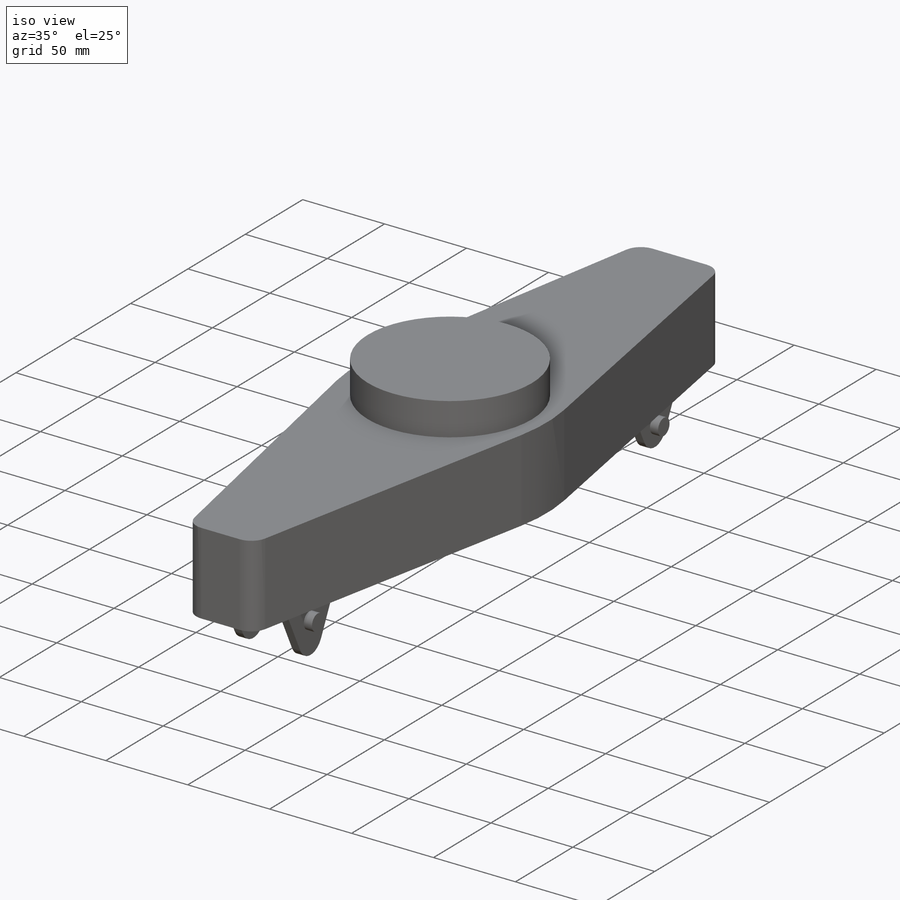
[diagram: iso view]
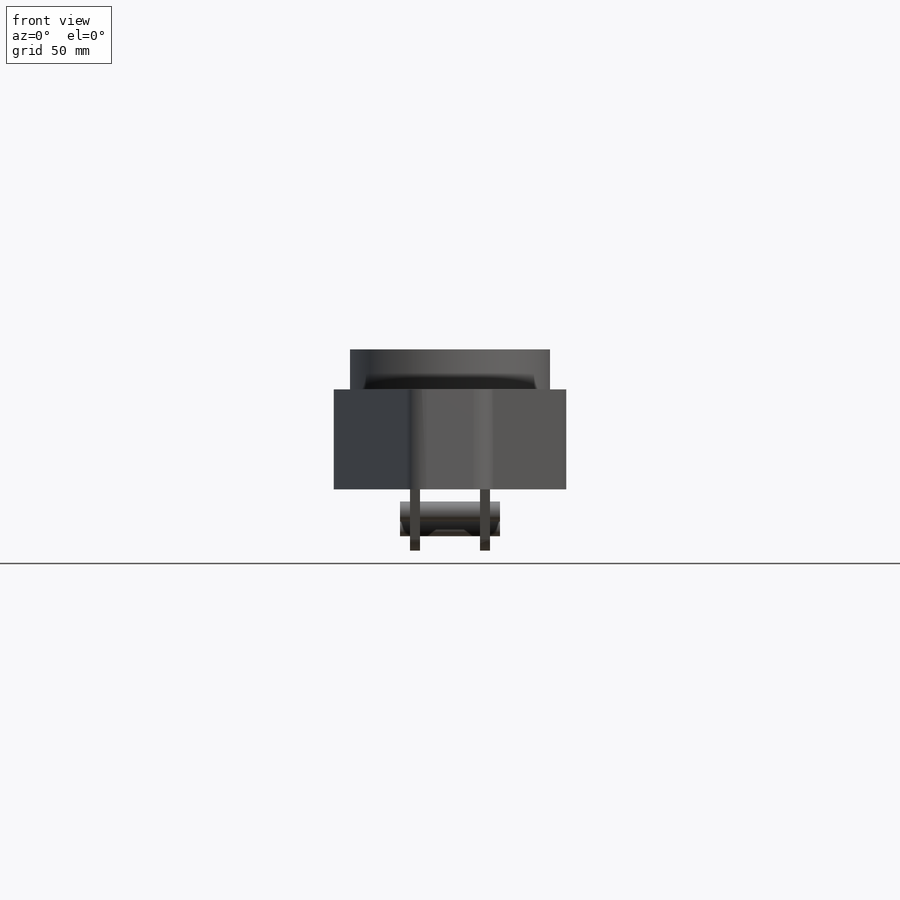
[diagram: front view]
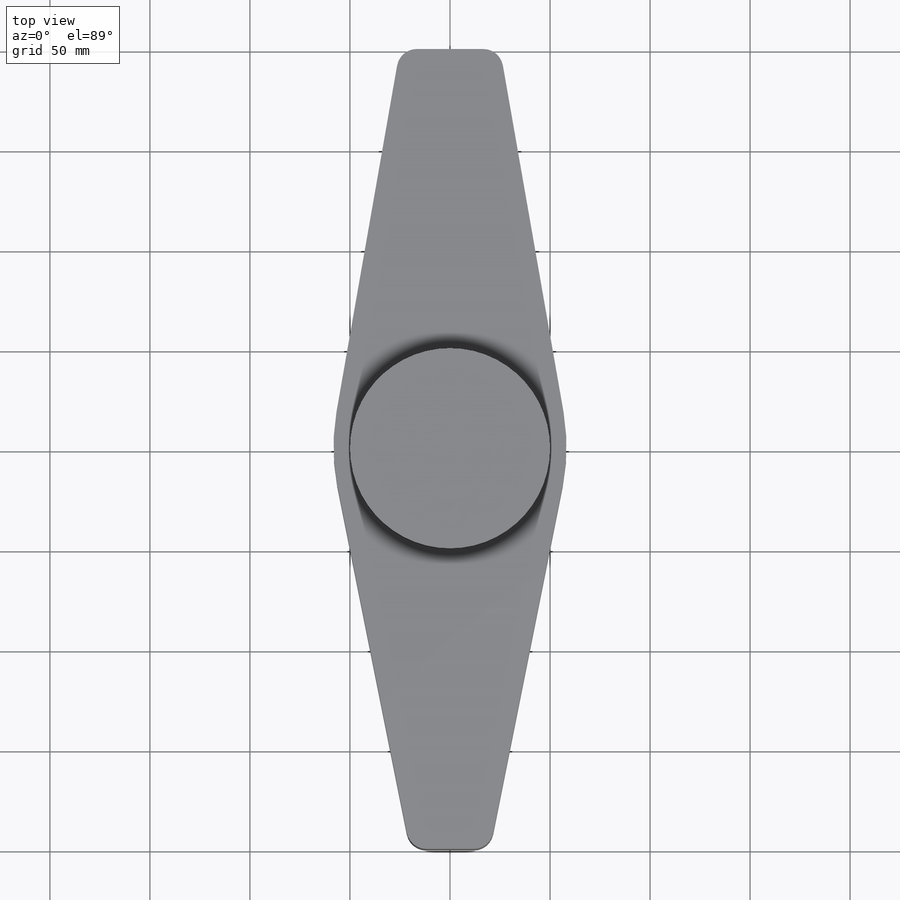
[diagram: top view]
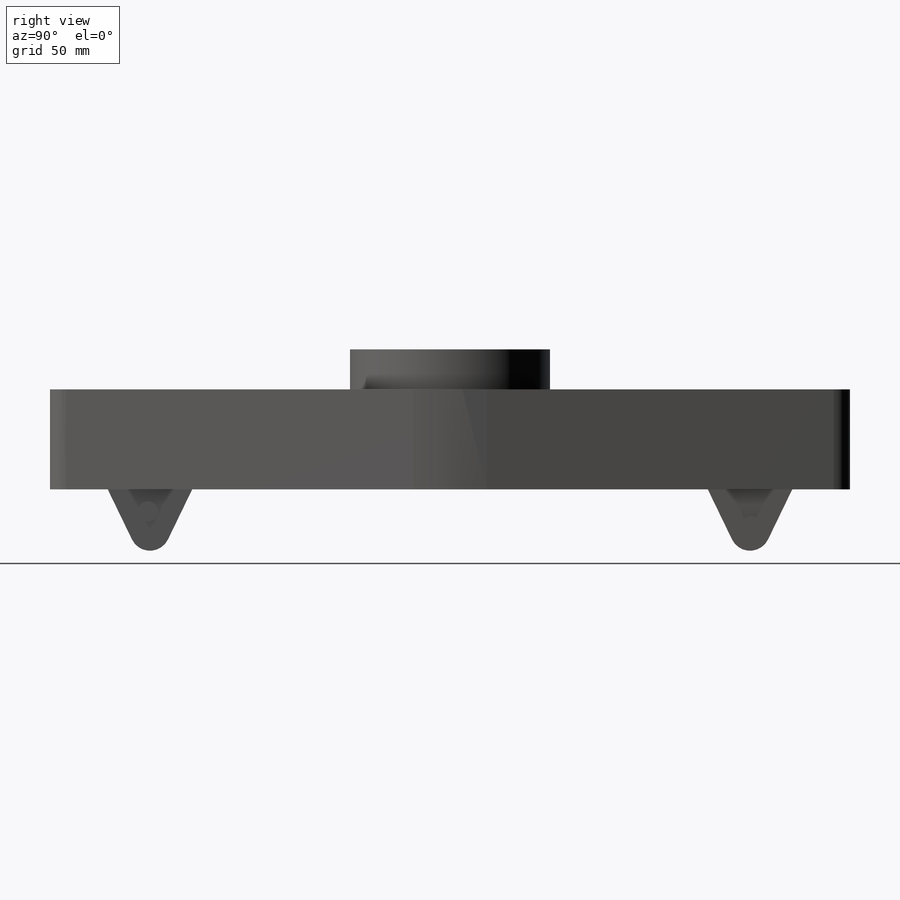
[diagram: right view]
SOLIDWORKS PART (.sldprt)
format: sldprt  version: not decoded by parser v0  size: 240,128 bytes
history: native  units: mm
features: sketch x5, extrude x5, fillet x2, material x1, plane x1, mirror x1 (+13 scaffold rows collapsed)
feature tree (28):
  scaffold x13  (default folders/planes/origin — collapsed)
  material  "Material <not specified>"
  sketch  "Sketch2"  dims[D1=400.0mm D1/2=~164.226804mm D2=200.0mm D3=60.0mm D4=25.0mm D5=20.0mm]
  extrude  "Boss-Extrude1"  Depth=25mm
  sketch  "Sketch3"  dims[D2=100.0mm D1=0.0mm]
  extrude  "Boss-Extrude2"  Depth=45mm
  plane  "Plane1"  Offset=15mm
  sketch  "Sketch6"  dims[c1.D1=10.0mm c1.D2=10.0mm c1.D4=10.0mm c2.D1=0.0mm c2.D2=10.0mm c2.D3=0.0mm c2.D4=0.0mm c3.D1=~18.185841mm c4.D1=75.0deg c4.D2=~3.95671mm c5.D2=75.0deg c5.D3=~18.026849mm c5.D4=0.0mm c5.D5=0.0mm c5.D6=0.0mm c5.D7=~9.186082mm c6.D7=75.0deg c6.D8=75.0deg c6.D9=~18.026849mm c6.D10=0.0mm c6.D11=0.0mm c6.D12=0.0mm c6.D13=0.0mm c6.D14=~5.085117mm c6.D15=20.0mm c6.D16=20.0mm c6.D17=10.0mm c6.D18=~5.16972mm c6.D19=~5.16972mm c7.D18=~5.16972mm c7.D19=~5.16972mm c8.D18=~5.16972mm c8.D4=0.0mm c9.D18=~0.000321mm c9.D2=0.0mm c9.D3=20.0mm c9.D4=20.0mm c9.D5=0.0mm c9.D6=25.0mm c9.D7=0.0mm c9.D8=20.0mm c9.D9=20.0mm c10.D8=150.0mm c10.D2=0.0mm c10.D3=25.0mm]
  extrude  "Boss-Extrude3"  Depth=5mm
  mirror  "Mirror2"
  fillet  "Fillet1"  Radius=100mm
  fillet  "Fillet3"  Radius=10mm
  sketch  "Sketch7"  dims[D1=~5.379323mm]
  sketch  "Sketch8"  dims[D1=~4.271949mm]
  extrude  "Boss-Extrude4"  Depth=5mm
  extrude  "Boss-Extrude5"  Depth=5mm
decode coverage: 12 of 13 modeling features carry decoded parameters
note: ~ marks probable driven/reference dimensions
note: suppression state not decoded; provenance and decode notes live in map.json
